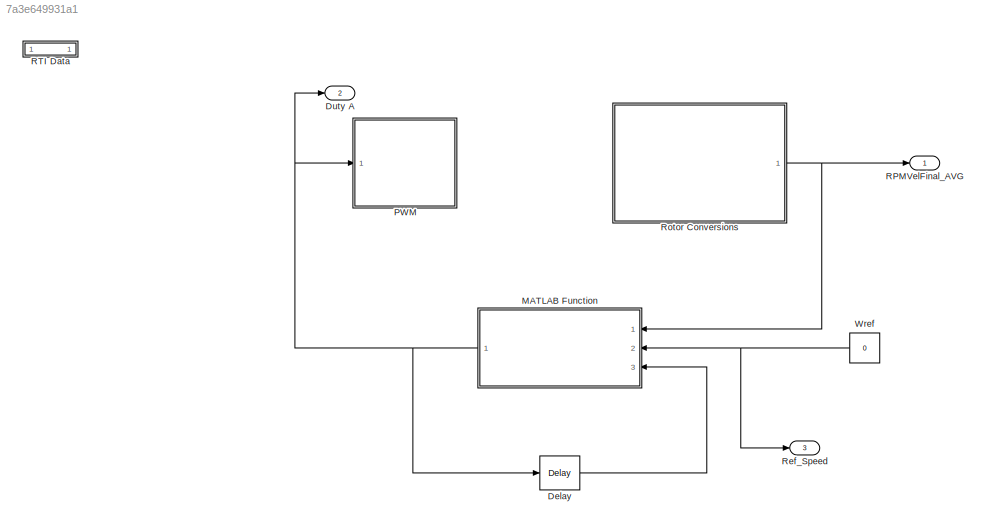
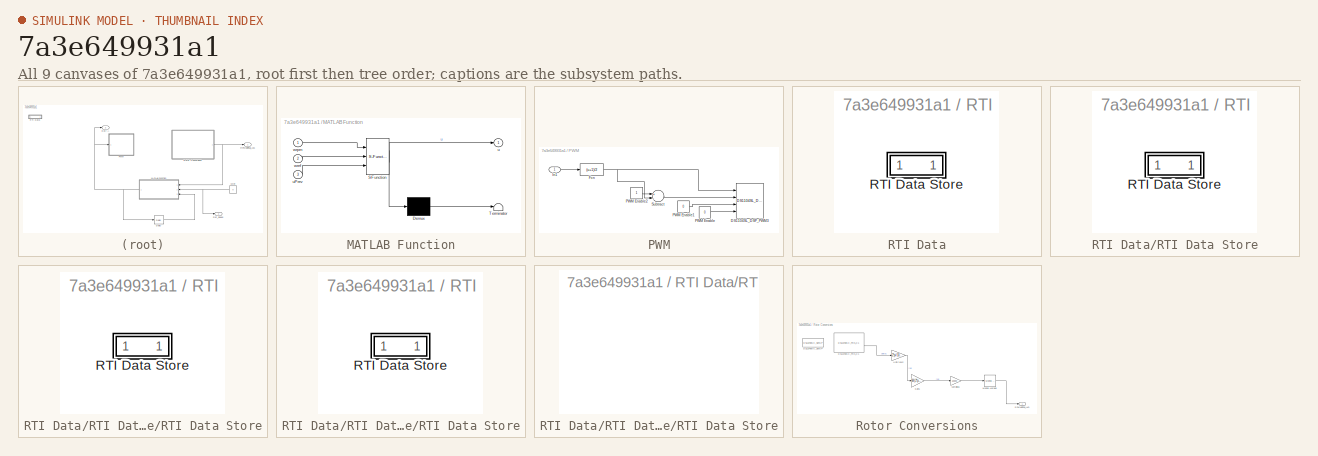
[diagram: thumbnail index - all 9 canvases of the model, root first then tree order]
MODEL slx_7a3e649931a1
KIND model
CONFIG AbsTol = auto
CONFIG EnableMultiTasking = off
CONFIG FixedStep = 0.0001
CONFIG MaxStep = auto
CONFIG MinStep = auto
CONFIG PostLoadFcn = , if any(exist('dsrtsu_mdlpostloadfcn', 'file') == [2, 3, 6]), try dsrtsu_mdlpostloadfcn('Execute', bdroot); catch fprintf('Error in PostLoadFcn (dsrtsu_mdlpostloadfcn) for model "%s":\n %s\n', bdroot, lasterr); end, end, \n
CONFIG RelTol = 1e-3
CONFIG SampleTimeConstraint = Unconstrained
CONFIG Solver = ode4
CONFIG SolverName = ode4
CONFIG StartTime = 0.0
CONFIG StopTime = inf
BLOCK [Delay] Delay
  DelayLength = 1
  InputPortMap = u0
  Ports = [1, 1]
BLOCK [Outport] Duty A
  IconDisplay = Port number
  Port = 2
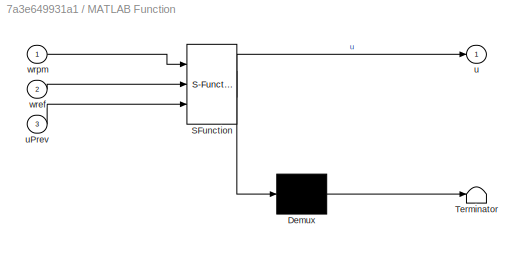
BLOCK [SubSystem] MATLAB Function
  ErrorFcn = Stateflow.Translate.translate
  PermitHierarchicalResolution = ExplicitOnly
  Ports = [3, 1]
  RequestExecContextInheritance = off
  SFBlockType = MATLAB Function
  TreatAsAtomicUnit = on
  Variant = off
BLOCK [Demux] MATLAB Function/ Demux 
  Outputs = 1
  Ports = [1, 1]
BLOCK [S-Function] MATLAB Function/ SFunction 
  EnableBusSupport = on
  FunctionName = sf_sfun
  PortCounts = [3 2]
  Ports = [3, 2]
  SFcnIsStateOwnerBlock = off
  SFunctionDeploymentMode = off
  Tag = Stateflow S-Function Experiment_2 2
BLOCK [Terminator] MATLAB Function/ Terminator 
BLOCK [Outport] MATLAB Function/u
  IconDisplay = Port number
BLOCK [Inport] MATLAB Function/uPrev
  IconDisplay = Port number
  Port = 3
BLOCK [Inport] MATLAB Function/wref
  IconDisplay = Port number
  Port = 2
BLOCK [Inport] MATLAB Function/wrpm
  IconDisplay = Port number
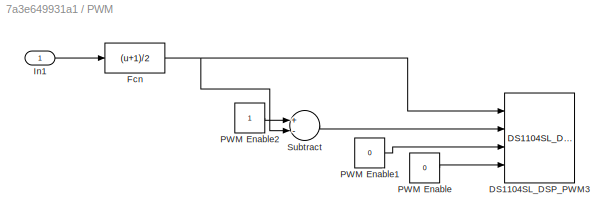
BLOCK [SubSystem] PWM
  Ports = [1]
  RequestExecContextInheritance = off
  Variant = off
BLOCK [Reference] PWM/DS1104SL_DSP_PWM3  REF=rtilib1104/DS1104 SLAVE DSP/DS1104SL_DSP_PWM3
  Ports = [4]
  SourceBlock = rtilib1104/DS1104 SLAVE DSP/DS1104SL_DSP_PWM3
  SourceProductName = dSPACE RTI1104
  SourceType = RTI
BLOCK [Fcn] PWM/Fcn
  Expr = (u+1)/2
BLOCK [Inport] PWM/In1
  IconDisplay = Port number
BLOCK [Constant] PWM/PWM Enable
  Value = 0
BLOCK [Constant] PWM/PWM Enable1
  Value = 0
BLOCK [Constant] PWM/PWM Enable2
BLOCK [Sum] PWM/Subtract
  InputSameDT = off
  Inputs = +-
  OutDataTypeStr = Inherit: Inherit via internal rule
  Ports = [2, 1]
  SaturateOnIntegerOverflow = off
BLOCK [Outport] RPMVelFinal_AVG
  IconDisplay = Port number
BLOCK [SubSystem] RTI Data
  CopyFcn = if exist('rtidc'), try,  rtidc('DataHostBlockClbCopy', gcbh); catch, disp(['Warning: ''CopyFcn'' for RTI Data block failed: ' lasterr]); end, end,
  DeleteFcn = if exist('rtidc'), try,  rtidc('DataHostBlockClbDelete', gcbh); catch, disp(['Warning: ''DeleteFcn'' for RTI Data block failed: ' lasterr]); end, end,
  LoadFcn = if exist('rtidc'), try,  rtidc('DataHostBlockClbLoad', gcbh); catch, disp(['Warning: ''LoadFcn'' for RTI Data block failed: ' lasterr]); end, end,
  ModelCloseFcn = if exist('rtidc'), try,  rtidc('DataHostBlockClbModelClose', gcbh); catch, disp(['Warning: ''ModelCloseFcn'' for RTI Data block failed: ' lasterr]); end, end,
  NameChangeFcn = if exist('rtidc'), try,  rtidc('DataHostBlockClbNameChange', gcbh); catch, disp(['Warning: ''NameChangeFcn'' for RTI Data block failed: ' lasterr]); end, end,
  Ports = []
  PostSaveFcn = if exist('rtidc'), try,  rtidc('DataHostBlockClbPostSave', gcbh); catch, disp(['Warning: ''PostSaveFcn'' for RTI Data block failed: ' lasterr]); end, end,
  PreSaveFcn = if exist('rtidc'), try,  rtidc('DataHostBlockClbPreSave', gcbh); catch, disp(['Warning: ''PreSaveFcn'' for RTI Data block failed: ' lasterr]); end, end,
  RequestExecContextInheritance = off
  Tag = struct('RTIDataServer',struct('RTIDataServerVs','2','RTIModelDescription','struct(''main'',''Experiment_2'',''sub'','''',''isMp'',0)'))
  Variant = off
BLOCK [SubSystem] RTI Data/RTI Data Store
  Ports = []
  RequestExecContextInheritance = off
  Tag = struct('private',struct('version',struct('dsVer',uint32(2),'dsVerCreation',uint32(2),'RTI',struct('ver','7.9','type','RTI1104')),'access',struct('type','Model','isPerm',1,'created',['24-Jan-2020 12:31:47'],'modified',['13-Mar-2020 12:02:47'],'location','')),'public',struct('main',struct('data',[]),'sub',struct('name',{{'Experiment_2'}},'data',{{struct('TH',struct('thTaskInfo',struct('taskType',{'T...<+893ch>
  Variant = off
BLOCK [SubSystem] RTI Data/RTI Data Store/RTI Data Store
  Ports = []
  RequestExecContextInheritance = off
  Variant = off
BLOCK [SubSystem] RTI Data/RTI Data Store/RTI Data Store/RTI Data Store
  Ports = []
  RequestExecContextInheritance = off
  Variant = off
BLOCK [SubSystem] RTI Data/RTI Data Store/RTI Data Store/RTI Data Store/RTI Data Store
  Ports = []
  RequestExecContextInheritance = off
  Variant = off
BLOCK [Outport] Ref_Speed
  IconDisplay = Port number
  Port = 3
BLOCK [SubSystem] Rotor Conversions
  Ports = [0, 1]
  RequestExecContextInheritance = off
  Variant = off
BLOCK [Reference] Rotor Conversions/DS1104ENC_POS_C1  REF=rtilib1104/DS1104 MASTER PPC/DS1104ENC_POS_C1
  Ports = [0, 2]
  SourceBlock = rtilib1104/DS1104 MASTER PPC/DS1104ENC_POS_C1
  SourceProductName = dSPACE RTI1104
  SourceType = RTI
BLOCK [Reference] Rotor Conversions/DS1104ENC_SETUP  REF=rtilib1104/DS1104 MASTER PPC/DS1104ENC_SETUP
  Ports = []
  SourceBlock = rtilib1104/DS1104 MASTER PPC/DS1104ENC_SETUP
  SourceProductName = dSPACE RTI1104
  SourceType = RTI
BLOCK [Gain] Rotor Conversions/Gain1
  Gain = 60/(2*pi)
  OutDataTypeStr = Inherit: Inherit via internal rule
  ParamDataTypeStr = Inherit: Inherit via internal rule
  SaturateOnIntegerOverflow = off
BLOCK [Reference] Rotor Conversions/Moving Average  REF=dspstat3/Moving
Average
  Ports = [1, 1]
  SourceBlock = dspstat3/Moving\nAverage
  SourceProductBaseCode = DS
  SourceProductName = DSP System Toolbox
  SourceType = dsp.MovingAverage
BLOCK [Outport] Rotor Conversions/RPMVelFinal_AVG
  IconDisplay = Port number
BLOCK [Gain] Rotor Conversions/UnitConv2
  Gain = 2*pi/1000
  OutDataTypeStr = Inherit: Inherit via internal rule
  ParamDataTypeStr = Inherit: Inherit via internal rule
  SaturateOnIntegerOverflow = off
BLOCK [Gain] Rotor Conversions/sampling1
  Gain = 10000
  OutDataTypeStr = Inherit: Inherit via internal rule
  ParamDataTypeStr = Inherit: Inherit via internal rule
  SaturateOnIntegerOverflow = off
BLOCK [Constant] Wref
  Value = 0
LINE Delay:1 -> MATLAB Function:3
NET MATLAB Function:1 -> Delay:1, Duty A:1, PWM:1
NET PWM/Fcn:1 -> PWM/DS1104SL_DSP_PWM3:1, PWM/Subtract:2
LINE PWM/In1:1 -> PWM/Fcn:1
LINE PWM/PWM Enable1:1 -> PWM/DS1104SL_DSP_PWM3:3
LINE PWM/PWM Enable2:1 -> PWM/Subtract:1
LINE PWM/PWM Enable:1 -> PWM/DS1104SL_DSP_PWM3:4
LINE PWM/Subtract:1 -> PWM/DS1104SL_DSP_PWM3:2
LINE Rotor Conversions/DS1104ENC_POS_C1:2 -> Rotor Conversions/UnitConv2:1
LINE Rotor Conversions/Gain1:1 -> Rotor Conversions/sampling1:1
LINE Rotor Conversions/Moving Average:1 -> Rotor Conversions/RPMVelFinal_AVG:1
LINE Rotor Conversions/UnitConv2:1 -> Rotor Conversions/Gain1:1
LINE Rotor Conversions/sampling1:1 -> Rotor Conversions/Moving Average:1
NET Rotor Conversions:1 -> MATLAB Function:1, RPMVelFinal_AVG:1
NET Wref:1 -> MATLAB Function:2, Ref_Speed:1
note: NET lines group one-source signal fan-out (src -> all destinations, sorted); 1:1 wires keep LINE
CHART MATLAB Function states=1 transitions=1
  STATE_LABEL 'eML_blk_kernel()'
  STATE_LABEL 'SCRIPT:\nfunction u = control(wrpm, wref,uPrev)\n    err = wref-wrpm;\n    du = .0001\n    if err > 0\n     u = uPrev+du;\n    elseif err < 0\n     u = uPrev-du;\n    else\n      u = uPrev;\n    end\n    \n    if u > 1\n        u = 1;\n    elseif u < -1\n        u = -1;\n    end\nend\n\n    \n    \n\n'
